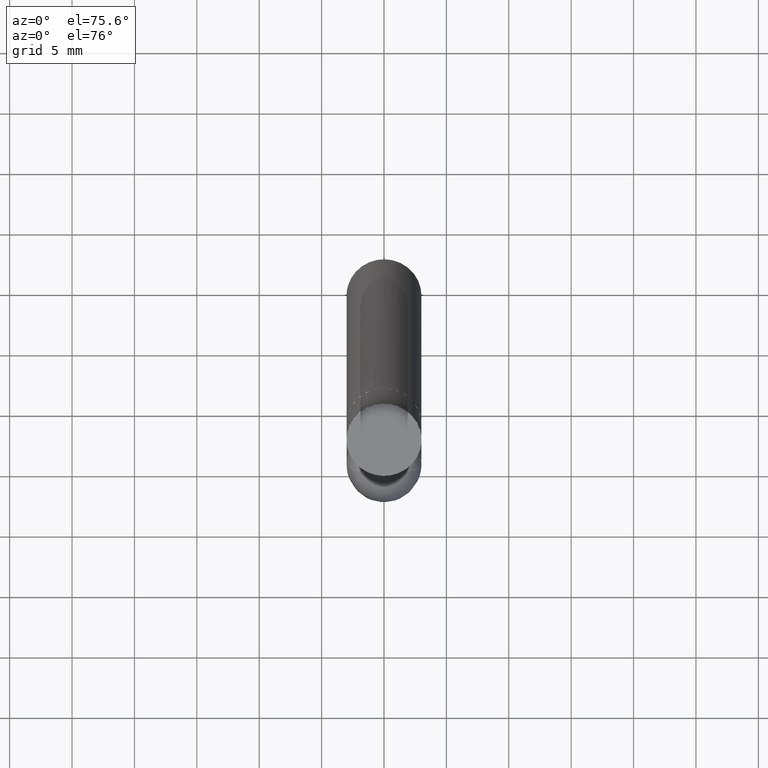
[diagram: clean part render]
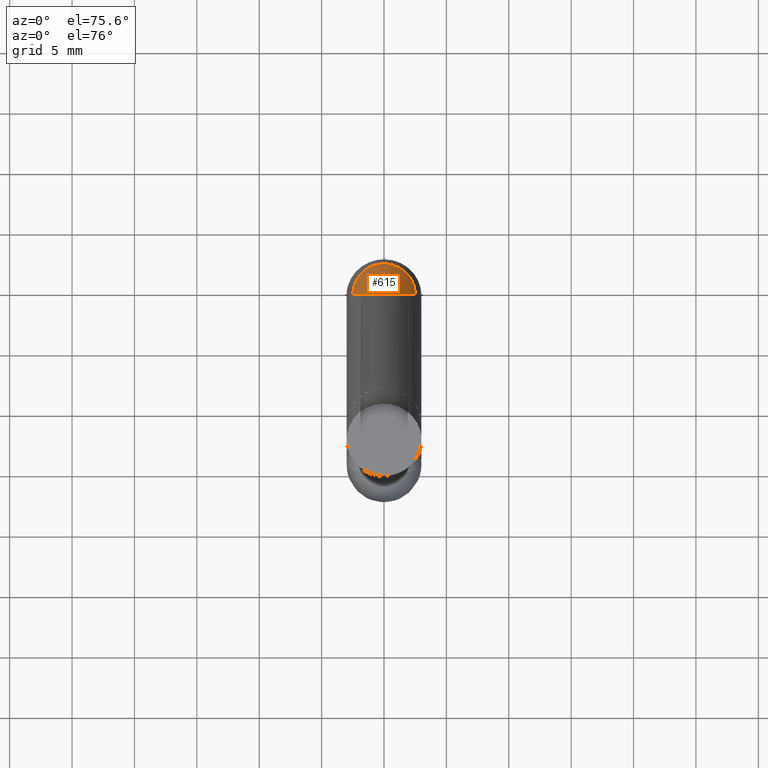
[diagram: same view with one face highlighted and labeled with its STEP entity id]
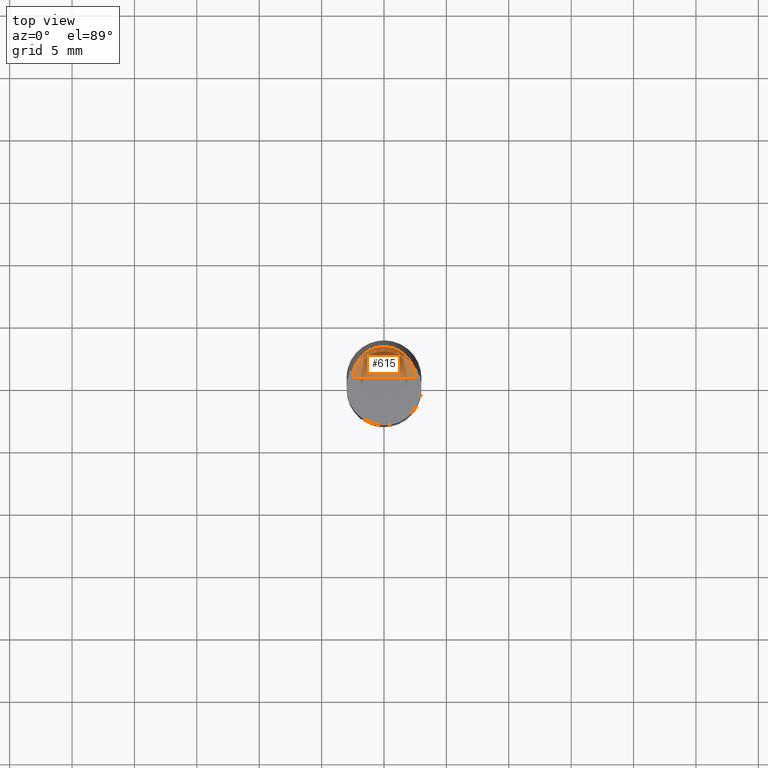
[diagram: same view with one face highlighted and labeled with its STEP entity id]
A machine part, auxiliary view. The second image highlights one B-rep face of the part: STEP entity #615.
A second angle (top view) of the same face is appended — the face is thin or edge-on in the first view.
In plain terms, the highlighted face is a freeform B-spline surface patch.
Its self-contained STEP definition (entity closure, byte-faithful):
#396=CARTESIAN_POINT('',(2.5,0.0,42.0));
#397=CARTESIAN_POINT('',(2.5,2.5,42.0));
#398=CARTESIAN_POINT('',(0.0,2.5,42.0));
#399=CARTESIAN_POINT('',(-2.5,2.5,42.0));
#400=CARTESIAN_POINT('',(-2.5,0.0,42.0));
#401=CARTESIAN_POINT('',(0.0,0.0,42.0));
#600=(
BOUNDED_SURFACE()
B_SPLINE_SURFACE(1,2,(
(#396,#397,#398,#399,#400),
(#401,#401,#401,#401,#401)
), .UNSPECIFIED.,.F.,.F.,.F.)
B_SPLINE_SURFACE_WITH_KNOTS((2,2),(3,2,3),(
0.0,1.0),(
0.0,0.5,1.0), .UNSPECIFIED.)
GEOMETRIC_REPRESENTATION_ITEM()
RATIONAL_B_SPLINE_SURFACE(((1.0,0.707106781187,1.0,0.707106781187,1.0),
(1.0,0.707106781187,1.0,0.707106781187,1.0)
))
REPRESENTATION_ITEM('')
SURFACE()
);
#601=(
BOUNDED_CURVE()
B_SPLINE_CURVE(2,(#400,#399,#398,#397,#396),.UNSPECIFIED.,.F.,.F.)
B_SPLINE_CURVE_WITH_KNOTS((3,2,3),
(0.0,0.5,1.0),.UNSPECIFIED.)
CURVE()
GEOMETRIC_REPRESENTATION_ITEM()
RATIONAL_B_SPLINE_CURVE((1.0,0.707106781187,1.0,0.707106781187,1.0))
REPRESENTATION_ITEM('')
);
#602=(
BOUNDED_CURVE()
B_SPLINE_CURVE(1,(#396,#401),.UNSPECIFIED.,.F.,.F.)
B_SPLINE_CURVE_WITH_KNOTS((2,2),
(0.0,1.0),.UNSPECIFIED.)
CURVE()
GEOMETRIC_REPRESENTATION_ITEM()
RATIONAL_B_SPLINE_CURVE((1.0,1.0))
REPRESENTATION_ITEM('')
);
#603=(
BOUNDED_CURVE()
B_SPLINE_CURVE(1,(#401,#400),.UNSPECIFIED.,.F.,.F.)
B_SPLINE_CURVE_WITH_KNOTS((2,2),
(0.0,1.0),.UNSPECIFIED.)
CURVE()
GEOMETRIC_REPRESENTATION_ITEM()
RATIONAL_B_SPLINE_CURVE((1.0,1.0))
REPRESENTATION_ITEM('')
);
#604=VERTEX_POINT('',#396);
#605=VERTEX_POINT('',#400);
#606=VERTEX_POINT('',#401);
#607=EDGE_CURVE('',#605,#604,#601,.T.);
#608=EDGE_CURVE('',#604,#606,#602,.T.);
#609=EDGE_CURVE('',#606,#605,#603,.T.);
#610=ORIENTED_EDGE('',*,*,#607,.T.);
#611=ORIENTED_EDGE('',*,*,#608,.T.);
#612=ORIENTED_EDGE('',*,*,#609,.T.);
#613=EDGE_LOOP('',(#610,#611,#612));
#614=FACE_OUTER_BOUND('',#613,.T.);
#615=ADVANCED_FACE('',(#614),#600,.T.);